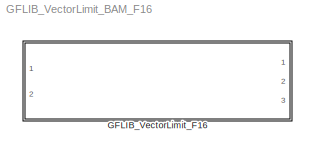
MODEL GFLIB_VectorLimit_BAM_F16
KIND model
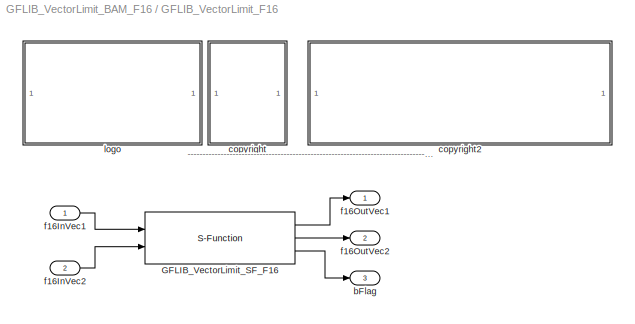
BLOCK [SubSystem] GFLIB_VectorLimit_F16
  Ports = [2, 3]
  RequestExecContextInheritance = off
  SID = 1
BLOCK [S-Function] GFLIB_VectorLimit_F16/GFLIB_VectorLimit_SF_F16
  EnableBusSupport = off
  FunctionName = GFLIB_VectorLimit_SF_F16
  Parameters = f16Limit
  Ports = [2, 3]
  SID = 4
BLOCK [Outport] GFLIB_VectorLimit_F16/bFlag
  IconDisplay = Port number
  Port = 3
  SID = 10
BLOCK [SubSystem] GFLIB_VectorLimit_F16/<copyright redacted>
  Ports = []
  RequestExecContextInheritance = off
  SID = 5
BLOCK [SubSystem] GFLIB_VectorLimit_F16/copyright2
  Ports = []
  RequestExecContextInheritance = off
  SID = 6
BLOCK [Inport] GFLIB_VectorLimit_F16/f16InVec1
  IconDisplay = Port number
  SID = 2
BLOCK [Inport] GFLIB_VectorLimit_F16/f16InVec2
  IconDisplay = Port number
  Port = 2
  SID = 3
BLOCK [Outport] GFLIB_VectorLimit_F16/f16OutVec1
  IconDisplay = Port number
  SID = 8
BLOCK [Outport] GFLIB_VectorLimit_F16/f16OutVec2
  IconDisplay = Port number
  Port = 2
  SID = 9
BLOCK [SubSystem] GFLIB_VectorLimit_F16/logo
  Ports = []
  RequestExecContextInheritance = off
  SID = 7
ANNOTATION GFLIB_VectorLimit_F16: ---------------------------------------------------------------------------------------------------------------------------------------------------------------------------------------------------
LINE GFLIB_VectorLimit_F16/GFLIB_VectorLimit_SF_F16:1 -> GFLIB_VectorLimit_F16/f16OutVec1:1
LINE GFLIB_VectorLimit_F16/GFLIB_VectorLimit_SF_F16:2 -> GFLIB_VectorLimit_F16/f16OutVec2:1
LINE GFLIB_VectorLimit_F16/GFLIB_VectorLimit_SF_F16:3 -> GFLIB_VectorLimit_F16/bFlag:1
LINE GFLIB_VectorLimit_F16/f16InVec1:1 -> GFLIB_VectorLimit_F16/GFLIB_VectorLimit_SF_F16:1
LINE GFLIB_VectorLimit_F16/f16InVec2:1 -> GFLIB_VectorLimit_F16/GFLIB_VectorLimit_SF_F16:2
